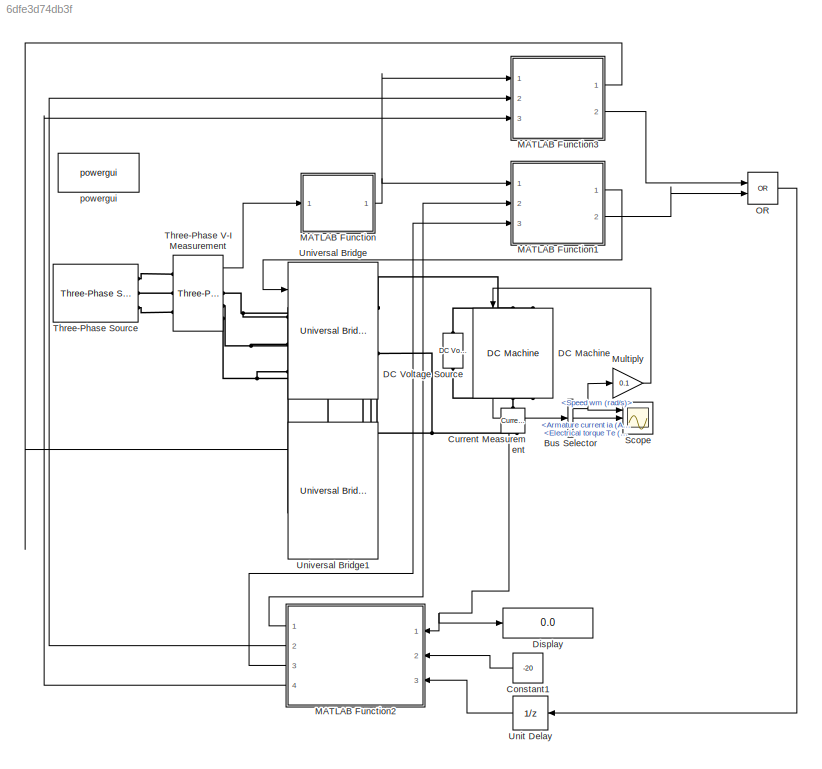
MODEL slx_6dfe3d74db3f
KIND model
CONFIG AbsTol = auto
CONFIG EnableMultiTasking = off
CONFIG FixedStep = auto
CONFIG MaxStep = auto
CONFIG MinStep = auto
CONFIG RelTol = 1e-3
CONFIG SampleTimeConstraint = Unconstrained
CONFIG SolverName = VariableStepAuto
CONFIG StartTime = 0.0
CONFIG StopTime = 100
BLOCK [BusSelector] Bus Selector
  OutputSignals = Speed wm (rad/s),Armature current ia (A),Electrical torque Te (n m)
  Ports = [1, 3]
BLOCK [Constant] Constant1
  NameLocation = top
  Value = -20
BLOCK [Reference] Current Measurement  REF=spsCurrentMeasurementLib/Current Measurement
  NameLocation = right
  Ports = [0, 1, 0, 0, 0, 1, 1]
  SourceBlock = spsCurrentMeasurementLib/Current Measurement
  SourceProductBaseCode = PS
  SourceType = Current Measurement
  UserDataPersistent = on
BLOCK [Reference] DC Machine  REF=spsDCMachineLib/DC Machine
  NameLocation = left
  Ports = [1, 1, 0, 0, 0, 2, 2]
  SourceBlock = spsDCMachineLib/DC Machine
  SourceProductBaseCode = PS
  SourceType = DC machine
BLOCK [Reference] DC Voltage Source  REF=spsDCVoltageSourceLib/DC Voltage Source
  Ports = [0, 0, 0, 0, 0, 1, 1]
  SourceBlock = spsDCVoltageSourceLib/DC Voltage Source
  SourceProductBaseCode = PS
  SourceType = DC Voltage Source
BLOCK [Display] Display
  Decimation = 1
  Ports = [1]
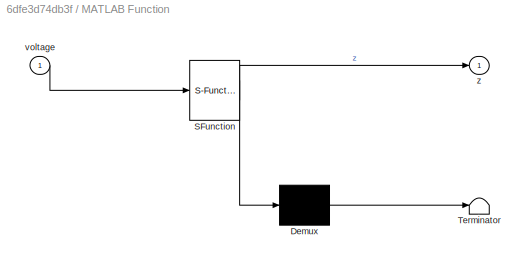
BLOCK [SubSystem] MATLAB Function
  ErrorFcn = Stateflow.Translate.translate
  PermitHierarchicalResolution = ExplicitOnly
  Ports = [1, 1]
  RequestExecContextInheritance = off
  SFBlockType = MATLAB Function
  TreatAsAtomicUnit = on
BLOCK [Demux] MATLAB Function/ Demux 
  Outputs = 1
  Ports = [1, 1]
BLOCK [S-Function] MATLAB Function/ SFunction 
  EnableBusSupport = on
  FunctionName = sf_sfun
  PortCounts = [1 2]
  Ports = [1, 2]
  SFcnIsStateOwnerBlock = off
  SFunctionDeploymentMode = off
  Tag = Stateflow S-Function 2
BLOCK [Terminator] MATLAB Function/ Terminator 
BLOCK [Inport] MATLAB Function/voltage
BLOCK [Outport] MATLAB Function/z
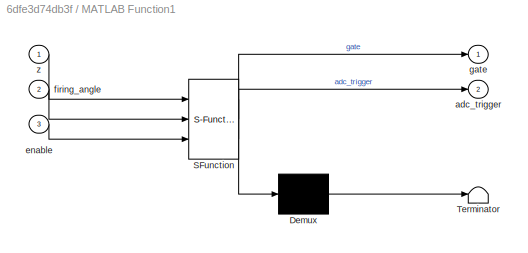
BLOCK [SubSystem] MATLAB Function1
  ErrorFcn = Stateflow.Translate.translate
  PermitHierarchicalResolution = ExplicitOnly
  Ports = [3, 2]
  RequestExecContextInheritance = off
  SFBlockType = MATLAB Function
  TreatAsAtomicUnit = on
BLOCK [Demux] MATLAB Function1/ Demux 
  Outputs = 1
  Ports = [1, 1]
BLOCK [S-Function] MATLAB Function1/ SFunction 
  EnableBusSupport = on
  FunctionName = sf_sfun
  PortCounts = [3 3]
  Ports = [3, 3]
  SFcnIsStateOwnerBlock = off
  SFunctionDeploymentMode = off
  Tag = Stateflow S-Function 1
BLOCK [Terminator] MATLAB Function1/ Terminator 
BLOCK [Outport] MATLAB Function1/adc_trigger
  Port = 2
BLOCK [Inport] MATLAB Function1/enable
  Port = 3
BLOCK [Inport] MATLAB Function1/firing_angle
  Port = 2
BLOCK [Outport] MATLAB Function1/gate
BLOCK [Inport] MATLAB Function1/z
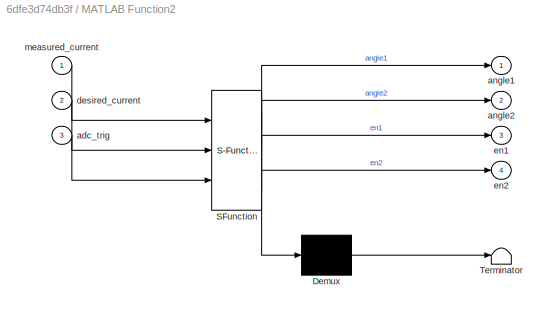
BLOCK [SubSystem] MATLAB Function2
  ErrorFcn = Stateflow.Translate.translate
  PermitHierarchicalResolution = ExplicitOnly
  Ports = [3, 4]
  RequestExecContextInheritance = off
  SFBlockType = MATLAB Function
  TreatAsAtomicUnit = on
BLOCK [Demux] MATLAB Function2/ Demux 
  Outputs = 1
  Ports = [1, 1]
BLOCK [S-Function] MATLAB Function2/ SFunction 
  EnableBusSupport = on
  FunctionName = sf_sfun
  PortCounts = [3 5]
  Ports = [3, 5]
  SFcnIsStateOwnerBlock = off
  SFunctionDeploymentMode = off
  Tag = Stateflow S-Function 3
BLOCK [Terminator] MATLAB Function2/ Terminator 
BLOCK [Inport] MATLAB Function2/adc_trig
  Port = 3
BLOCK [Outport] MATLAB Function2/angle1
BLOCK [Outport] MATLAB Function2/angle2
  Port = 2
BLOCK [Inport] MATLAB Function2/desired_current
  Port = 2
BLOCK [Outport] MATLAB Function2/en1
  Port = 3
BLOCK [Outport] MATLAB Function2/en2
  Port = 4
BLOCK [Inport] MATLAB Function2/measured_current
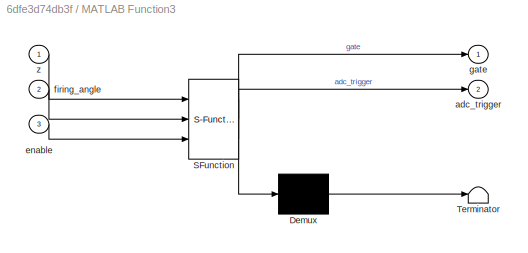
BLOCK [SubSystem] MATLAB Function3
  ErrorFcn = Stateflow.Translate.translate
  PermitHierarchicalResolution = ExplicitOnly
  Ports = [3, 2]
  RequestExecContextInheritance = off
  SFBlockType = MATLAB Function
  TreatAsAtomicUnit = on
BLOCK [Demux] MATLAB Function3/ Demux 
  Outputs = 1
  Ports = [1, 1]
BLOCK [S-Function] MATLAB Function3/ SFunction 
  EnableBusSupport = on
  FunctionName = sf_sfun
  PortCounts = [3 3]
  Ports = [3, 3]
  SFcnIsStateOwnerBlock = off
  SFunctionDeploymentMode = off
  Tag = Stateflow S-Function 4
BLOCK [Terminator] MATLAB Function3/ Terminator 
BLOCK [Outport] MATLAB Function3/adc_trigger
  Port = 2
BLOCK [Inport] MATLAB Function3/enable
  Port = 3
BLOCK [Inport] MATLAB Function3/firing_angle
  Port = 2
BLOCK [Outport] MATLAB Function3/gate
BLOCK [Inport] MATLAB Function3/z
BLOCK [Gain] Multiply
  Gain = 0.1
BLOCK [Logic] OR
  AllPortsSameDT = off
  IconShape = distinctive
  Operator = OR
  OutDataTypeStr = boolean
  Ports = [2, 1]
BLOCK [Scope] Scope
  Floating = off
  NumInputPorts = 3
  Ports = [3]
  ScopeSpecificationString = Simulink.scopes.TimeScopeBlockCfg('CurrentConfiguration', extmgr.ConfigurationSet(extmgr.Configuration('Core','General UI',true),extmgr.Configuration('Core','Source UI',true),extmgr.Configuration('Sources','WiredSimulink',true,'DataLoggingVariableName','ScopeData2'),extmgr.Configuration('Visuals','Time Domain',true,'SerializedDisplays',{struct('MinYLimReal','-30.10964','MaxYLimReal','34.78351','YL...<+1629ch>
BLOCK [Reference] Three-Phase Source  REF=spsThreePhaseSourceLib/Three-Phase Source
  Ports = [0, 0, 0, 0, 0, 0, 3]
  SourceBlock = spsThreePhaseSourceLib/Three-Phase Source
  SourceProductBaseCode = PS
  SourceType = Three-Phase Source
BLOCK [Reference] Three-Phase V-I Measurement  REF=spsThreePhaseVIMeasurementLib/Three-Phase
V-I Measurement
  Ports = [0, 2, 0, 0, 0, 3, 3]
  SourceBlock = spsThreePhaseVIMeasurementLib/Three-Phase\nV-I Measurement
  SourceProductBaseCode = PS
  SourceType = Three-Phase VI Measurement
BLOCK [UnitDelay] Unit Delay
  HasFrameUpgradeWarning = on
  NameLocation = top
  SampleTime = -1
BLOCK [Reference] Universal Bridge  REF=spsUniversalBridgeLib/Universal Bridge
  Ports = [1, 0, 0, 0, 0, 3, 2]
  SourceBlock = spsUniversalBridgeLib/Universal Bridge
  SourceProductBaseCode = PS
  SourceType = Universal Bridge
BLOCK [Reference] Universal Bridge1  REF=spsUniversalBridgeLib/Universal Bridge
  NameLocation = top
  Ports = [1, 0, 0, 0, 0, 3, 2]
  SourceBlock = spsUniversalBridgeLib/Universal Bridge
  SourceProductBaseCode = PS
  SourceType = Universal Bridge
BLOCK [Reference] powergui  REF=spspowerguiLib/powergui
  Ports = []
  Priority = 1
  SourceBlock = spspowerguiLib/powergui
  SourceProductBaseCode = PS
  SourceType = PSB option menu block
NET Bus Selector:1 -> Multiply:1, Scope:1
LINE Bus Selector:2 -> Scope:2
LINE Bus Selector:3 -> Scope:3
LINE Constant1:1 -> MATLAB Function2:2
NET Current Measurement:1 -> Display:1, MATLAB Function2:1
LINE DC Machine:1 -> Bus Selector:1
LINE MATLAB Function1:1 -> Universal Bridge:1
LINE MATLAB Function1:2 -> OR:2
LINE MATLAB Function2:1 -> MATLAB Function1:2
LINE MATLAB Function2:2 -> MATLAB Function3:2
LINE MATLAB Function2:3 -> MATLAB Function1:3
LINE MATLAB Function2:4 -> MATLAB Function3:3
LINE MATLAB Function3:1 -> Universal Bridge1:1
LINE MATLAB Function3:2 -> OR:1
NET MATLAB Function:1 -> MATLAB Function1:1, MATLAB Function3:1
LINE Multiply:1 -> DC Machine:1
LINE OR:1 -> Unit Delay:1
LINE Three-Phase V-I Measurement:1 -> MATLAB Function:1
LINE Unit Delay:1 -> MATLAB Function2:3
PLINE Current Measurement:LConn1 -- DC Machine:RConn1
PNET net1: Current Measurement:RConn1 -- Universal Bridge1:RConn1 -- Universal Bridge:RConn2
PNET net2: DC Machine:LConn1 -- Universal Bridge1:RConn2 -- Universal Bridge:RConn1
PLINE DC Machine:LConn2 -- DC Voltage Source:RConn1
PLINE DC Machine:RConn2 -- DC Voltage Source:LConn1
PLINE Three-Phase Source:RConn1 -- Three-Phase V-I Measurement:LConn1
PLINE Three-Phase Source:RConn2 -- Three-Phase V-I Measurement:LConn2
PLINE Three-Phase Source:RConn3 -- Three-Phase V-I Measurement:LConn3
PNET net3: Three-Phase V-I Measurement:RConn1 -- Universal Bridge1:LConn1 -- Universal Bridge:LConn1
PNET net4: Three-Phase V-I Measurement:RConn2 -- Universal Bridge1:LConn2 -- Universal Bridge:LConn2
PNET net5: Three-Phase V-I Measurement:RConn3 -- Universal Bridge1:LConn3 -- Universal Bridge:LConn3
note: NET lines group one-source signal fan-out (src -> all destinations, sorted); 1:1 wires keep LINE; PNET lines group multi-terminal physical nets as a canonical sorted terminal list (undirected conserving connections); 2-terminal nets keep the pairwise PLINE form
CHART MATLAB Function1 states=1 transitions=1
  STATE_LABEL 'eML_blk_kernel()'
  STATE_LABEL 'SCRIPT:\nfunction [gate, adc_trigger]= fcn(z, firing_angle, enable)\n\npersistent angle_pA;\n\npersistent step;\n\nif isempty(step)\n    step = 6;\nend\n\nif isempty(angle_pA)\n    angle_pA = 0;\nend\n\nd2r=pi/180;\nr2d=180/pi;\n\n\nif z==1 %sync first phase\n    angle_pA = 0;\nelse\n    angle_pA = angle_pA + 0.18;\nend\n\n%bridge config is 1 3 5\n%                 4 6 2\nif (enable == 1)\n        if(r2d*angdiff((firing_angl...<+2200ch>'
CHART MATLAB Function states=1 transitions=1
  STATE_LABEL 'eML_blk_kernel()'
  STATE_LABEL 'SCRIPT:\nfunction z   = fcn( voltage)\n    \n    persistent past_voltage;\n    \n    if isempty(past_voltage)\n        past_voltage = 0;\n    end\n\n    if(past_voltage < 0 && voltage(1)>=0)\n        z=1;\n    else\n        z=0;\n    end\n    past_voltage = voltage(1);\nend\n'
CHART MATLAB Function2 states=1 transitions=1
  STATE_LABEL 'eML_blk_kernel()'
  STATE_LABEL 'SCRIPT:\nfunction [angle1, angle2, en1, en2]= fcn(measured_current,desired_current, adc_trig)\npersistent firing_angle1;\npersistent firing_angle2;\n\nif(isempty(firing_angle1))\n    firing_angle1 = 120;\nend\nif(isempty(firing_angle2))\n    firing_angle2 = 120;\nend\n\nif desired_current>0%angle1 enable1\n    if(adc_trig == 1)\n        if(desired_current>measured_current)\n            firing_angle1 = firing_ang...<+965ch>'
CHART MATLAB Function3 states=1 transitions=1
  STATE_LABEL 'eML_blk_kernel()'
  STATE_LABEL 'SCRIPT:\nfunction [gate, adc_trigger]= fcn(z, firing_angle, enable)\n\npersistent angle_pA;\n\npersistent step;\n\nif isempty(step)\n    step = 6;\nend\n\nif isempty(angle_pA)\n    angle_pA = 0;\nend\n\nd2r=pi/180;\nr2d=180/pi;\n\n\nif z==1 %sync first phase\n    angle_pA = 0;\nelse\n    angle_pA = angle_pA + 0.18;\nend\n\n%bridge config is 1 3 5\n%                 4 6 2\nif (enable == 1)\n        if(r2d*angdiff((firing_angl...<+2200ch>'
CHART  states=0 transitions=0
CHART  states=0 transitions=0
CHART  states=0 transitions=0
CHART  states=0 transitions=0
